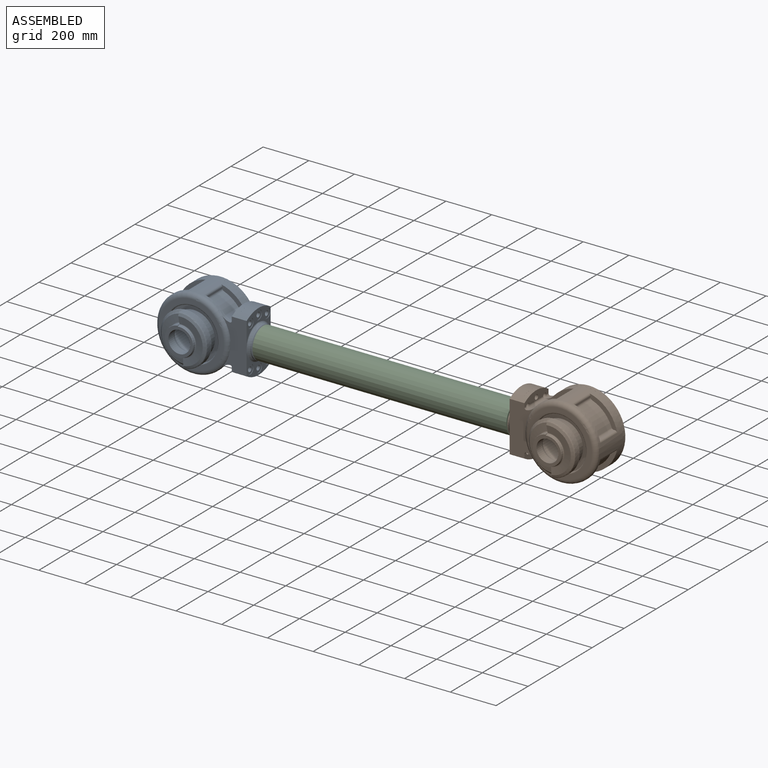
[diagram: assembled view]
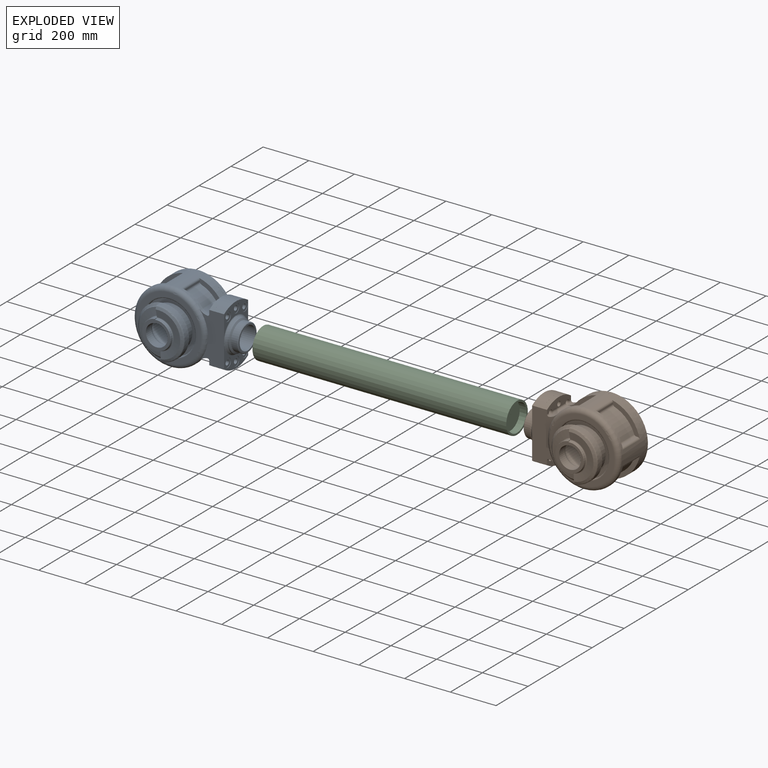
[diagram: exploded view]
GUIDED TOUR — MATED ASSEMBLY WITH SUBASSEMBLIES (Onshape document e0d1b59df1c4db4a15af49fb, AutoMate assembly e0d1b59df1c4db4a15af49fb_293eb3403b7e5a9b0ba6f898_ea851c5b34a008ae9504a71b_default)

This assembly has 13 component occurrences arranged in 3 top-level units: 1 individual components plus 2 subassemblies (S0, S1). The tour has two levels: first the top level, where each subassembly is treated as one rigid unit; then each subassembly is toured internally in its own section (nesting deeper than one subassembly level is flattened into its subassembly's section).

Components are labeled P0..P12 across the whole record; subassembly units are labeled S0..S1. A mate is a constraint between two units; its type names the relative motion it leaves free:
  CYLINDRICAL — leaves both rotation about and translation along the listed axis free,
  PLANAR — leaves sliding in the plane through the listed point (normal = the listed direction) and rotation about that normal free.
Axis/direction vectors are unit vectors and 'through' points are millimeter coordinates, both in the assembly's world frame.

TOP-LEVEL MATES (between units; each subassembly's internal mates are listed in its own section)
  1. PLANAR "Planar 2": S1 <-> P4, direction (-1.000, 0.000, 0.000) through (1665.70, 108.16, 194.84) mm
  2. CYLINDRICAL "Cylindrical 1": P4 <-> S0, axis (1.000, 0.000, 0.000) through (600.70, 108.16, 194.84) mm
  3. PLANAR "Planar 1": P4 <-> S0, direction (-1.000, 0.000, 0.000) through (615.70, 108.16, 194.84) mm
  4. CYLINDRICAL "Cylindrical 2": S1 <-> P4, axis (-1.000, 0.000, 0.000) through (1694.70, 108.16, 194.84) mm

TOP-LEVEL ASSEMBLY ORDER
  1. P4 — the base component [order verified]
  2. S0 [order verified]
  3. S1 [order verified]
(S0, S1 verified with a relaxed clearance tolerance: the source model stores slight part interference there.)
Order-tag legend:
  [order verified] — this step's position reverses a verified removal order: the component was checked to insert without passing through the ones already placed.

Of the 13 component occurrences, 3 carry the full construction recipe — the FeatureScript program that regenerates the part's solid from scratch; the rest are supplied as boundary geometry only. Each toured unit is shown spotlighted twice — assembled, then exploded with a leader line back to its socket (green = recipe-attached component, orange = geometry-only, blue = subassembly unit; the rest desaturated gray).
NOTE — document 2 of 2 of this assembly tour. The two overview renders and the header above are repeated from document 1; the component sections below continue where the previous document stopped.
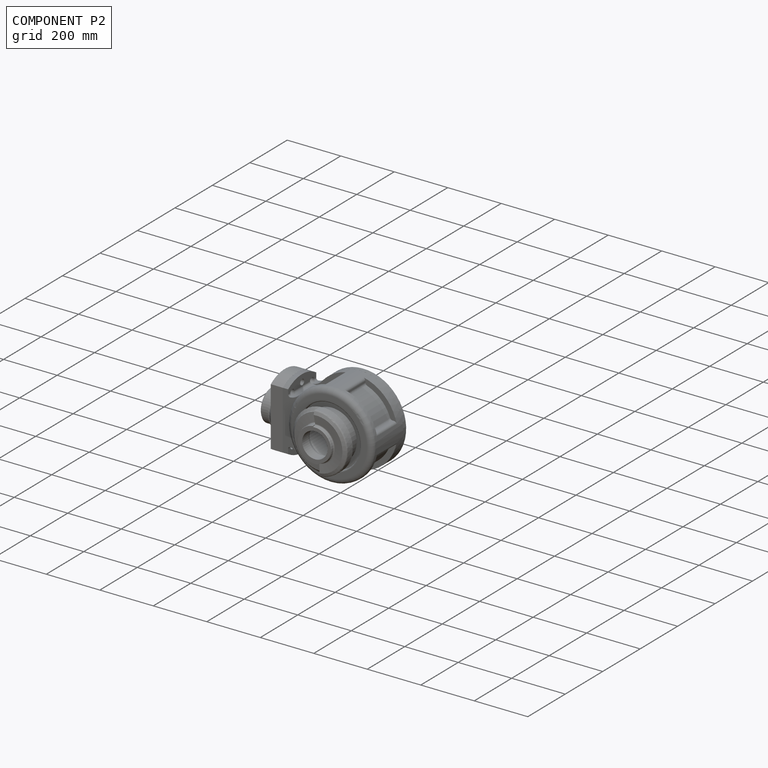
[diagram: component P2 — assembled]
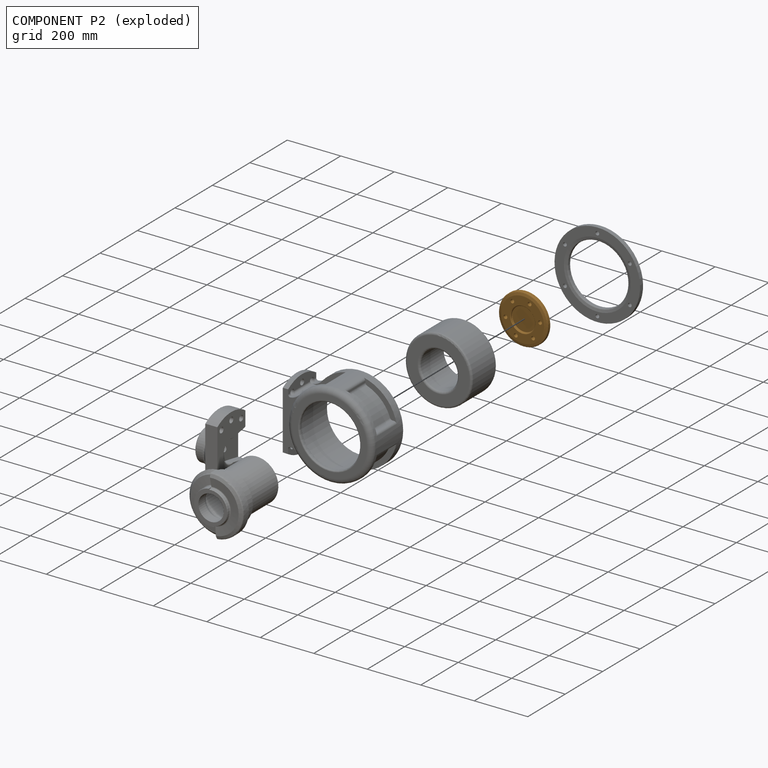
[diagram: component P2 — exploded]
COMPONENT P2 — geometry summary (no construction recipe available for this part):
  bounding box: 199.2 x 199.2 x 16.0 mm
  B-rep topology: 1 solid, 15 faces, 74 edges
  volume: 347738 mm^3 (55% of its bounding box)
  symmetry: 6-fold rotationally symmetric about the z axis; mirror-symmetric across its x mid-plane, y mid-plane
Held by: CYLINDRICAL mate "Cylindrical 3" to P6; PLANAR mate "Planar 3" to P6; CYLINDRICAL mate "Cylindrical 4" to P6; CYLINDRICAL mate "Cylindrical 3" to P6; PLANAR mate "Planar 3" to P6; CYLINDRICAL mate "Cylindrical 4" to P6.
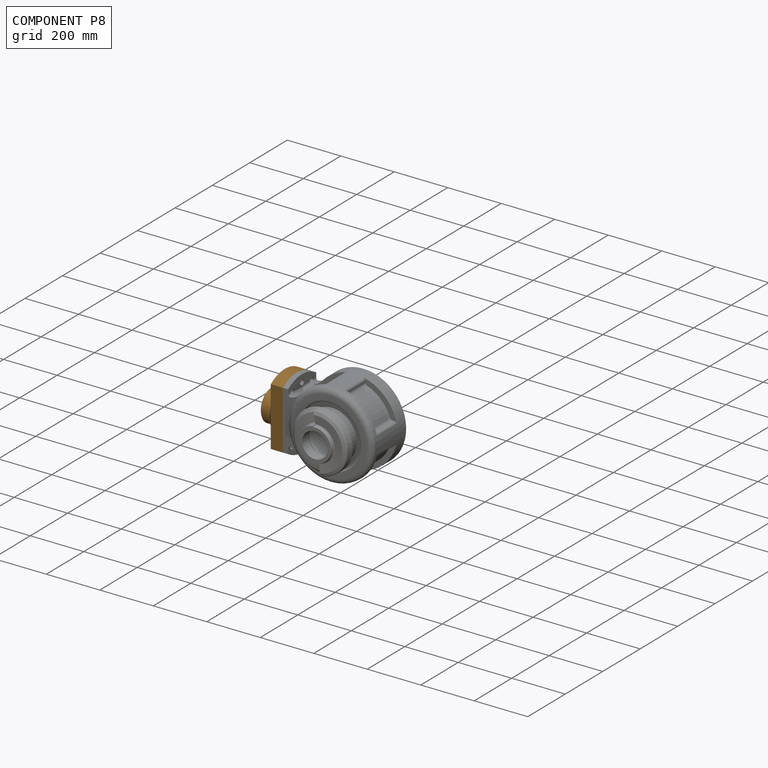
[diagram: component P8 — assembled]
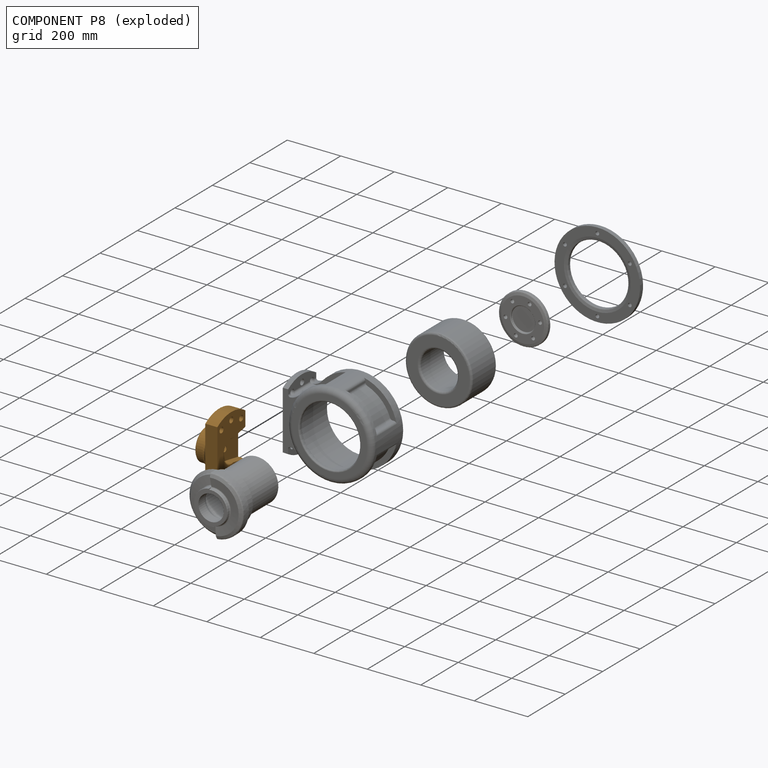
[diagram: component P8 — exploded]
COMPONENT P8 — geometry summary (no construction recipe available for this part):
  bounding box: 265.0 x 166.1 x 95.0 mm
  B-rep topology: 1 solid, 56 faces, 272 edges
  volume: 1452121 mm^3 (35% of its bounding box)
  symmetry: mirror-symmetric across its x mid-plane
Held by: CYLINDRICAL mate "Cylindrical 7" to P7; CYLINDRICAL mate "Cylindrical 6" to P7; PLANAR mate "Planar 5" to P7; CYLINDRICAL mate "Cylindrical 6" to P7; CYLINDRICAL mate "Cylindrical 7" to P7; PLANAR mate "Planar 5" to P7.
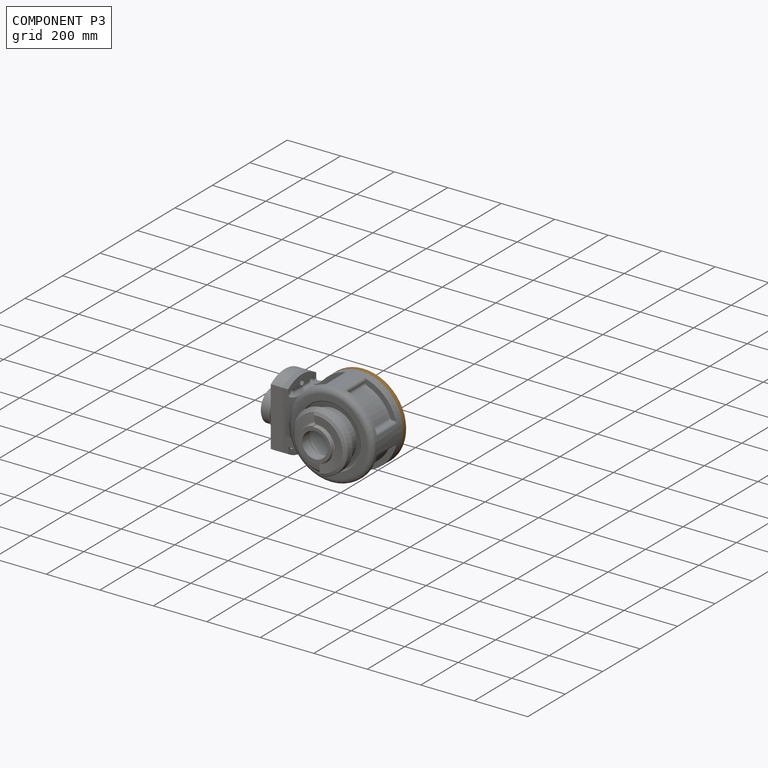
[diagram: component P3 — assembled]
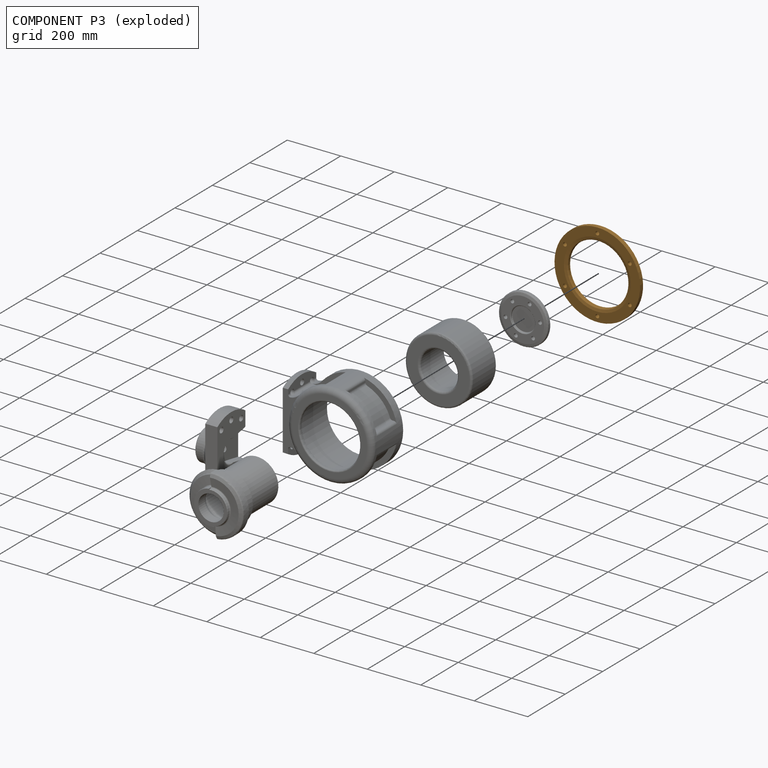
[diagram: component P3 — exploded]
COMPONENT P3 — geometry summary (no construction recipe available for this part):
  bounding box: 320.0 x 320.0 x 16.0 mm
  B-rep topology: 1 solid, 12 faces, 66 edges
  volume: 614707 mm^3 (38% of its bounding box)
  symmetry: 6-fold rotationally symmetric about the z axis; mirror-symmetric across its x mid-plane, y mid-plane
Held by: PLANAR mate "Planar 4" to P7; CYLINDRICAL mate "Cylindrical 5" to P7; CYLINDRICAL mate "Cylindrical 8" to P7; CYLINDRICAL mate "Cylindrical 5" to P7; PLANAR mate "Planar 4" to P7; CYLINDRICAL mate "Cylindrical 8" to P7.
PROVENANCE & LICENSES
Assembly (occurrences, transforms, mates, per-part STEP geometry): AutoMate dataset, Zenodo record 7776208, CC0.
Construction recipes: CADFS (HuggingFace VladPyatov/CADFS, CC-BY-4.0, layered over the ABC dataset), FeatureScript reconstruction programs keyed by ABC model id.
Join: ABC meta listings map ABC model id -> Onshape documentId; within a shared document, parts are matched by geometric signature (bounding-box dims + volume at 0.1% relative tolerance, exact B-rep face/solid counts).
Verification: 3 of this assembly's 13 components carry a recipe attachment, and every attachment is mesh-verified: the CADFS STEP and the AutoMate member STEP were compared as meshes in their shared local frame (symmetric sampled-point-to-mesh distance); worst across the 3 attachments: below the mesh-comparison resolution (tessellation chordal tolerance ~1.69 mm) on a 1126 mm part.
Renders: orthographic iso camera (az 35 / el 25); the floor grid conveys scale (grid pitch printed in each image; no ruler). In the exploded view each component is displaced by its stored offset vector: the offsets alone carry the explosion direction (mate normal/axis signs are not orientation cues and do not encode it), and separation distances are assigned per mate-chain, not proportionally to assembly-order depth.
